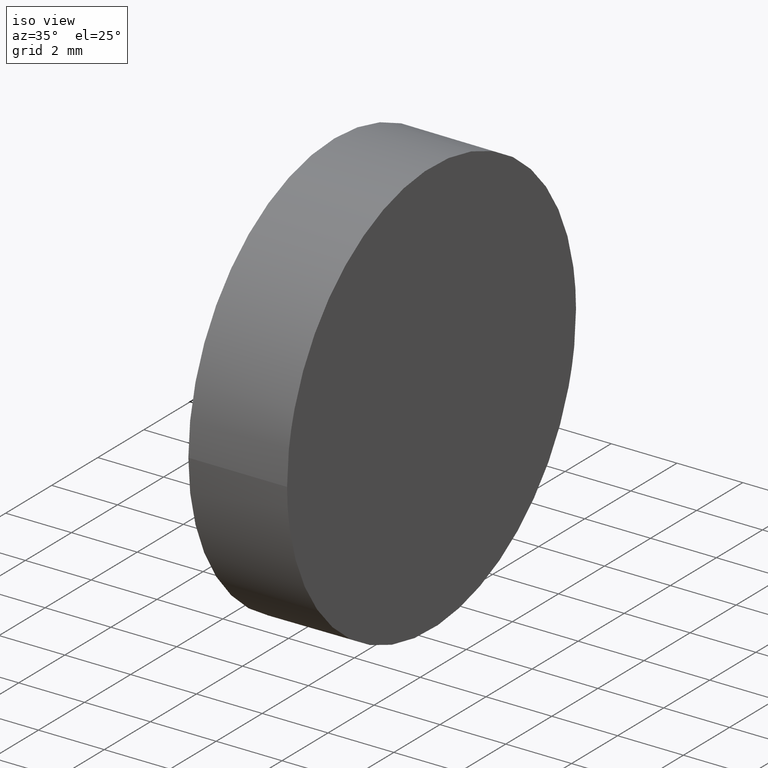
[diagram: clean part render]
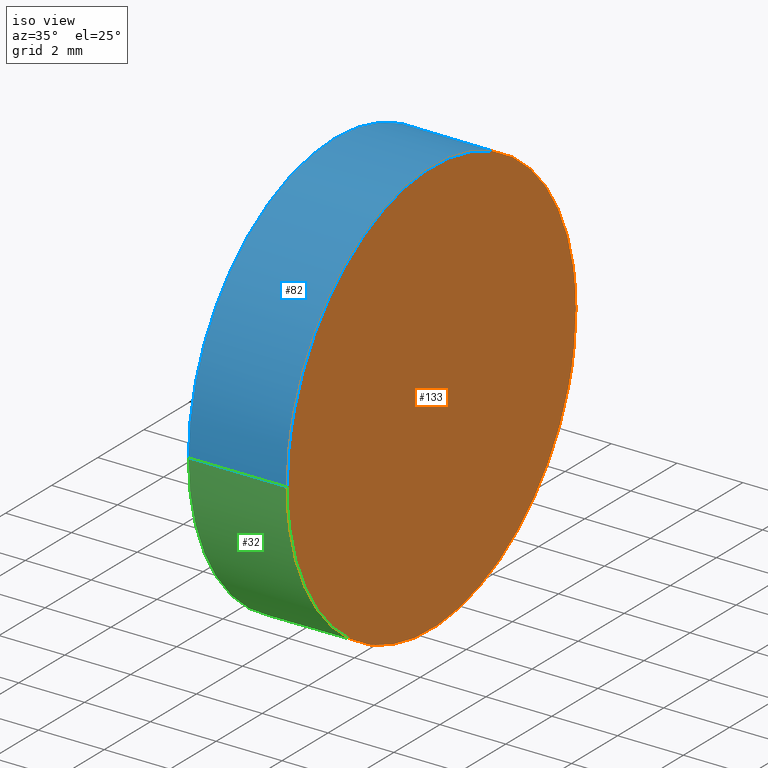
[diagram: same view with three faces highlighted in distinct colors, each labeled with its STEP entity id]
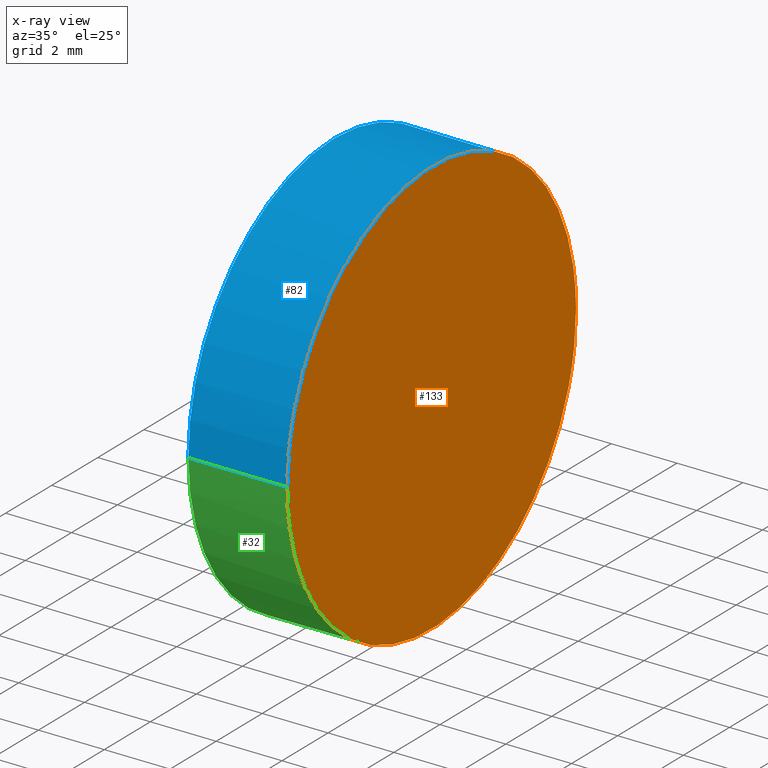
[diagram: x-ray of the same camera — body ghosted, the three highlighted faces saturated]
A machine part, iso view with three faces highlighted in distinct colors.
The next image is the same camera in x-ray (body ghosted, the three faces saturated) — at least one of them is partly hidden behind the body in this view.
Their STEP definitions:

[orange] entity #133 — the highlighted planar face has unit normal (-1, -0.0087, 0).
#3 = CARTESIAN_POINT ( 'NONE',  ( 3.000000000000001800, -6.350000000000000500, 6.349999999999999600 ) ) ;
#17 = ORIENTED_EDGE ( 'NONE', *, *, #98, .F. ) ;
#22 = PLANE ( 'NONE',  #35 ) ;
#35 = AXIS2_PLACEMENT_3D ( 'NONE', #60, #79, #102 ) ;
#44 = ORIENTED_EDGE ( 'NONE', *, *, #51, .F. ) ;
#51 = EDGE_CURVE ( 'NONE', #128, #86, #94, .T. ) ;
#60 = CARTESIAN_POINT ( 'NONE',  ( 3.000000000000001800, -6.350000000000001400, 12.69999999999999900 ) ) ;
#69 = CARTESIAN_POINT ( 'NONE',  ( 3.000000000000001800, -6.350000000000002300, 19.04999999999999700 ) ) ;
#70 = EDGE_LOOP ( 'NONE', ( #44, #17 ) ) ;
#77 = FACE_OUTER_BOUND ( 'NONE', #70, .T. ) ;
#79 = DIRECTION ( 'NONE',  ( -0.9999619230641714200, -0.008726535498367004500, 0.0000000000000000000 ) ) ;
#86 = VERTEX_POINT ( 'NONE', #139 ) ;
#94 =( BOUNDED_CURVE ( )  B_SPLINE_CURVE ( 3, ( #129, #69, #136, #110 ),
 .UNSPECIFIED., .F., .T. ) 
 B_SPLINE_CURVE_WITH_KNOTS ( ( 4, 4 ),
 ( 3.141592653589793100, 6.283185307179586200 ),
 .UNSPECIFIED. ) 
 CURVE ( )  GEOMETRIC_REPRESENTATION_ITEM ( )  RATIONAL_B_SPLINE_CURVE ( ( 1.000000000000000000, 0.3333333333333333700, 0.3333333333333333700, 1.000000000000000000 ) ) 
 REPRESENTATION_ITEM ( '' )  );
#98 = EDGE_CURVE ( 'NONE', #86, #128, #132, .T. ) ;
#102 = DIRECTION ( 'NONE',  ( 0.008726535498367004500, -0.9999619230641714200, 0.0000000000000000000 ) ) ;
#105 = CARTESIAN_POINT ( 'NONE',  ( 3.000000000000001800, -6.349999999999997000, -6.350000000000005000 ) ) ;
#110 = CARTESIAN_POINT ( 'NONE',  ( 2.889168779057453400, 6.350000000000000500, 6.350000000000000500 ) ) ;
#122 = CARTESIAN_POINT ( 'NONE',  ( 2.889168779057453000, 6.349999999999999600, -6.350000000000005000 ) ) ;
#124 = CARTESIAN_POINT ( 'NONE',  ( 2.889168779057453400, 6.350000000000000500, 6.350000000000000500 ) ) ;
#128 = VERTEX_POINT ( 'NONE', #3 ) ;
#129 = CARTESIAN_POINT ( 'NONE',  ( 3.000000000000001800, -6.350000000000000500, 6.349999999999999600 ) ) ;
#132 =( BOUNDED_CURVE ( )  B_SPLINE_CURVE ( 3, ( #124, #122, #105, #137 ),
 .UNSPECIFIED., .F., .T. ) 
 B_SPLINE_CURVE_WITH_KNOTS ( ( 4, 4 ),
 ( 0.0000000000000000000, 3.141592653589793100 ),
 .UNSPECIFIED. ) 
 CURVE ( )  GEOMETRIC_REPRESENTATION_ITEM ( )  RATIONAL_B_SPLINE_CURVE ( ( 1.000000000000000000, 0.3333333333333333700, 0.3333333333333333700, 1.000000000000000000 ) ) 
 REPRESENTATION_ITEM ( '' )  );
#133 = ADVANCED_FACE ( 'NONE', ( #77 ), #22, .F. ) ;
#136 = CARTESIAN_POINT ( 'NONE',  ( 2.889168779057453000, 6.349999999999999600, 19.05000000000000400 ) ) ;
#137 = CARTESIAN_POINT ( 'NONE',  ( 3.000000000000001800, -6.350000000000000500, 6.349999999999999600 ) ) ;
#139 = CARTESIAN_POINT ( 'NONE',  ( 2.889168779057453400, 6.350000000000000500, 6.350000000000000500 ) ) ;

[blue] entity #82 — the highlighted cylindrical surface (partial cylindrical patch) has radius 6.35 mm, axis along (-1, -0, -0).
#3 = CARTESIAN_POINT ( 'NONE',  ( 3.000000000000001800, -6.350000000000000500, 6.349999999999999600 ) ) ;
#6 = ORIENTED_EDGE ( 'NONE', *, *, #13, .F. ) ;
#9 = CIRCLE ( 'NONE', #42, 6.350000000000000500 ) ;
#10 = LINE ( 'NONE', #118, #96 ) ;
#12 = ORIENTED_EDGE ( 'NONE', *, *, #51, .T. ) ;
#13 = EDGE_CURVE ( 'NONE', #52, #131, #9, .T. ) ;
#15 = CARTESIAN_POINT ( 'NONE',  ( 0.0000000000000000000, 0.0000000000000000000, 6.349999999999999600 ) ) ;
#25 = ORIENTED_EDGE ( 'NONE', *, *, #106, .F. ) ;
#27 = CARTESIAN_POINT ( 'NONE',  ( 10.00000000000000000, 1.224646799147353300E-015, 6.349999999999999600 ) ) ;
#42 = AXIS2_PLACEMENT_3D ( 'NONE', #15, #67, #109 ) ;
#46 = CARTESIAN_POINT ( 'NONE',  ( 7.776507174585693100E-016, -6.350000000000000500, 6.349999999999999600 ) ) ;
#51 = EDGE_CURVE ( 'NONE', #128, #86, #94, .T. ) ;
#52 = VERTEX_POINT ( 'NONE', #46 ) ;
#67 = DIRECTION ( 'NONE',  ( -1.000000000000000000, -1.224646799147353200E-016, 0.0000000000000000000 ) ) ;
#69 = CARTESIAN_POINT ( 'NONE',  ( 3.000000000000001800, -6.350000000000002300, 19.04999999999999700 ) ) ;
#72 = DIRECTION ( 'NONE',  ( -1.000000000000000000, -1.224646799147353200E-016, -0.0000000000000000000 ) ) ;
#78 = DIRECTION ( 'NONE',  ( -1.000000000000000000, -1.224646799147353200E-016, -0.0000000000000000000 ) ) ;
#82 = ADVANCED_FACE ( 'NONE', ( #99 ), #114, .T. ) ;
#83 = LINE ( 'NONE', #116, #91 ) ;
#86 = VERTEX_POINT ( 'NONE', #139 ) ;
#89 = EDGE_CURVE ( 'NONE', #86, #131, #83, .T. ) ;
#91 = VECTOR ( 'NONE', #72, 1000.000000000000000 ) ;
#94 =( BOUNDED_CURVE ( )  B_SPLINE_CURVE ( 3, ( #129, #69, #136, #110 ),
 .UNSPECIFIED., .F., .T. ) 
 B_SPLINE_CURVE_WITH_KNOTS ( ( 4, 4 ),
 ( 3.141592653589793100, 6.283185307179586200 ),
 .UNSPECIFIED. ) 
 CURVE ( )  GEOMETRIC_REPRESENTATION_ITEM ( )  RATIONAL_B_SPLINE_CURVE ( ( 1.000000000000000000, 0.3333333333333333700, 0.3333333333333333700, 1.000000000000000000 ) ) 
 REPRESENTATION_ITEM ( '' )  );
#96 = VECTOR ( 'NONE', #78, 1000.000000000000000 ) ;
#97 = ORIENTED_EDGE ( 'NONE', *, *, #89, .T. ) ;
#99 = FACE_OUTER_BOUND ( 'NONE', #140, .T. ) ;
#100 = CARTESIAN_POINT ( 'NONE',  ( -7.776507174585693100E-016, 6.350000000000000500, 6.350000000000000500 ) ) ;
#106 = EDGE_CURVE ( 'NONE', #128, #52, #10, .T. ) ;
#108 = DIRECTION ( 'NONE',  ( -1.000000000000000000, -1.224646799147353200E-016, -0.0000000000000000000 ) ) ;
#109 = DIRECTION ( 'NONE',  ( 1.224646799147353200E-016, -1.000000000000000000, 0.0000000000000000000 ) ) ;
#110 = CARTESIAN_POINT ( 'NONE',  ( 2.889168779057453400, 6.350000000000000500, 6.350000000000000500 ) ) ;
#114 = CYLINDRICAL_SURFACE ( 'NONE', #125, 6.350000000000000500 ) ;
#116 = CARTESIAN_POINT ( 'NONE',  ( 10.00000000000000000, 6.350000000000001400, 6.350000000000000500 ) ) ;
#118 = CARTESIAN_POINT ( 'NONE',  ( 10.00000000000000000, -6.349999999999999600, 6.349999999999999600 ) ) ;
#125 = AXIS2_PLACEMENT_3D ( 'NONE', #27, #108, #138 ) ;
#128 = VERTEX_POINT ( 'NONE', #3 ) ;
#129 = CARTESIAN_POINT ( 'NONE',  ( 3.000000000000001800, -6.350000000000000500, 6.349999999999999600 ) ) ;
#131 = VERTEX_POINT ( 'NONE', #100 ) ;
#136 = CARTESIAN_POINT ( 'NONE',  ( 2.889168779057453000, 6.349999999999999600, 19.05000000000000400 ) ) ;
#138 = DIRECTION ( 'NONE',  ( 0.0000000000000000000, -1.000000000000000000, 0.0000000000000000000 ) ) ;
#139 = CARTESIAN_POINT ( 'NONE',  ( 2.889168779057453400, 6.350000000000000500, 6.350000000000000500 ) ) ;
#140 = EDGE_LOOP ( 'NONE', ( #12, #97, #6, #25 ) ) ;

[green] entity #32 — the highlighted cylindrical surface (partial cylindrical patch) has radius 6.35 mm, axis along (-1, -0, -0).
#3 = CARTESIAN_POINT ( 'NONE',  ( 3.000000000000001800, -6.350000000000000500, 6.349999999999999600 ) ) ;
#10 = LINE ( 'NONE', #118, #96 ) ;
#14 = DIRECTION ( 'NONE',  ( -1.000000000000000000, -1.224646799147353200E-016, 0.0000000000000000000 ) ) ;
#19 = DIRECTION ( 'NONE',  ( 1.224646799147353200E-016, -1.000000000000000000, 0.0000000000000000000 ) ) ;
#23 = AXIS2_PLACEMENT_3D ( 'NONE', #84, #14, #19 ) ;
#29 = CYLINDRICAL_SURFACE ( 'NONE', #73, 6.350000000000000500 ) ;
#31 = EDGE_CURVE ( 'NONE', #131, #52, #55, .T. ) ;
#32 = ADVANCED_FACE ( 'NONE', ( #50 ), #29, .T. ) ;
#41 = ORIENTED_EDGE ( 'NONE', *, *, #98, .T. ) ;
#46 = CARTESIAN_POINT ( 'NONE',  ( 7.776507174585693100E-016, -6.350000000000000500, 6.349999999999999600 ) ) ;
#50 = FACE_OUTER_BOUND ( 'NONE', #101, .T. ) ;
#52 = VERTEX_POINT ( 'NONE', #46 ) ;
#53 = DIRECTION ( 'NONE',  ( 0.0000000000000000000, -1.000000000000000000, 0.0000000000000000000 ) ) ;
#55 = CIRCLE ( 'NONE', #23, 6.350000000000000500 ) ;
#57 = DIRECTION ( 'NONE',  ( -1.000000000000000000, -1.224646799147353200E-016, -0.0000000000000000000 ) ) ;
#71 = ORIENTED_EDGE ( 'NONE', *, *, #89, .F. ) ;
#72 = DIRECTION ( 'NONE',  ( -1.000000000000000000, -1.224646799147353200E-016, -0.0000000000000000000 ) ) ;
#73 = AXIS2_PLACEMENT_3D ( 'NONE', #75, #57, #53 ) ;
#75 = CARTESIAN_POINT ( 'NONE',  ( 10.00000000000000000, 1.224646799147353300E-015, 6.349999999999999600 ) ) ;
#78 = DIRECTION ( 'NONE',  ( -1.000000000000000000, -1.224646799147353200E-016, -0.0000000000000000000 ) ) ;
#83 = LINE ( 'NONE', #116, #91 ) ;
#84 = CARTESIAN_POINT ( 'NONE',  ( 0.0000000000000000000, 0.0000000000000000000, 6.349999999999999600 ) ) ;
#86 = VERTEX_POINT ( 'NONE', #139 ) ;
#89 = EDGE_CURVE ( 'NONE', #86, #131, #83, .T. ) ;
#91 = VECTOR ( 'NONE', #72, 1000.000000000000000 ) ;
#96 = VECTOR ( 'NONE', #78, 1000.000000000000000 ) ;
#98 = EDGE_CURVE ( 'NONE', #86, #128, #132, .T. ) ;
#100 = CARTESIAN_POINT ( 'NONE',  ( -7.776507174585693100E-016, 6.350000000000000500, 6.350000000000000500 ) ) ;
#101 = EDGE_LOOP ( 'NONE', ( #71, #41, #130, #117 ) ) ;
#105 = CARTESIAN_POINT ( 'NONE',  ( 3.000000000000001800, -6.349999999999997000, -6.350000000000005000 ) ) ;
#106 = EDGE_CURVE ( 'NONE', #128, #52, #10, .T. ) ;
#116 = CARTESIAN_POINT ( 'NONE',  ( 10.00000000000000000, 6.350000000000001400, 6.350000000000000500 ) ) ;
#117 = ORIENTED_EDGE ( 'NONE', *, *, #31, .F. ) ;
#118 = CARTESIAN_POINT ( 'NONE',  ( 10.00000000000000000, -6.349999999999999600, 6.349999999999999600 ) ) ;
#122 = CARTESIAN_POINT ( 'NONE',  ( 2.889168779057453000, 6.349999999999999600, -6.350000000000005000 ) ) ;
#124 = CARTESIAN_POINT ( 'NONE',  ( 2.889168779057453400, 6.350000000000000500, 6.350000000000000500 ) ) ;
#128 = VERTEX_POINT ( 'NONE', #3 ) ;
#130 = ORIENTED_EDGE ( 'NONE', *, *, #106, .T. ) ;
#131 = VERTEX_POINT ( 'NONE', #100 ) ;
#132 =( BOUNDED_CURVE ( )  B_SPLINE_CURVE ( 3, ( #124, #122, #105, #137 ),
 .UNSPECIFIED., .F., .T. ) 
 B_SPLINE_CURVE_WITH_KNOTS ( ( 4, 4 ),
 ( 0.0000000000000000000, 3.141592653589793100 ),
 .UNSPECIFIED. ) 
 CURVE ( )  GEOMETRIC_REPRESENTATION_ITEM ( )  RATIONAL_B_SPLINE_CURVE ( ( 1.000000000000000000, 0.3333333333333333700, 0.3333333333333333700, 1.000000000000000000 ) ) 
 REPRESENTATION_ITEM ( '' )  );
#137 = CARTESIAN_POINT ( 'NONE',  ( 3.000000000000001800, -6.350000000000000500, 6.349999999999999600 ) ) ;
#139 = CARTESIAN_POINT ( 'NONE',  ( 2.889168779057453400, 6.350000000000000500, 6.350000000000000500 ) ) ;